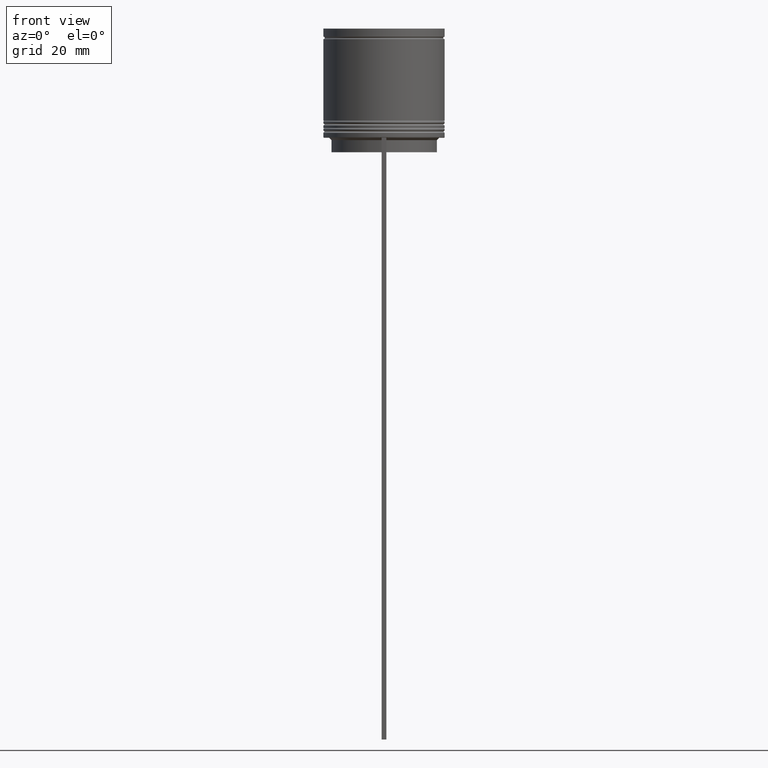
[diagram: clean part render]
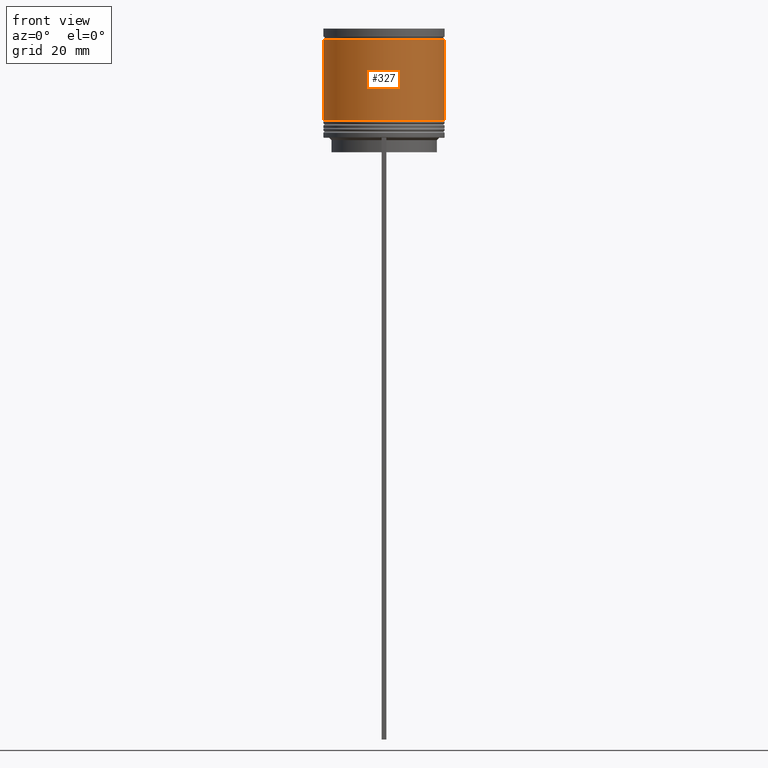
[diagram: same view with one face highlighted and labeled with its STEP entity id]
A machine part, front view. The second image highlights one B-rep face of the part: STEP entity #327.
In plain terms, the highlighted cylindrical surface (partial cylindrical patch) has radius 12.5 mm, axis along (-0, -0, 1).
Its self-contained STEP definition (entity closure, byte-faithful):
#38 = EDGE_CURVE ( 'NONE', #1458, #1888, #1235, .T. ) ;
#74 = DIRECTION ( 'NONE',  ( 1.000000000000000000, 0.000000000000000000, 0.000000000000000000 ) ) ;
#200 = ORIENTED_EDGE ( 'NONE', *, *, #1495, .F. ) ;
#283 = VECTOR ( 'NONE', #1565, 1000.000000000000000 ) ;
#327 = ADVANCED_FACE ( 'NONE', ( #378 ), #1955, .T. ) ;
#345 = AXIS2_PLACEMENT_3D ( 'NONE', #1831, #1221, #706 ) ;
#360 = CARTESIAN_POINT ( 'NONE',  ( 12.49999999999999645, 0.000000000000000000, -2.199999999999994404 ) ) ;
#378 = FACE_OUTER_BOUND ( 'NONE', #1289, .T. ) ;
#424 = CARTESIAN_POINT ( 'NONE',  ( -12.49999999999999645, 1.530808498934191324E-15, -2.199999999999994404 ) ) ;
#438 = CIRCLE ( 'NONE', #1141, 12.50000000000000178 ) ;
#531 = CARTESIAN_POINT ( 'NONE',  ( 12.50000000000000178, 0.000000000000000000, -19.00000000000000000 ) ) ;
#619 = CARTESIAN_POINT ( 'NONE',  ( -12.50000000000000000, 1.530808498934191521E-15, 0.000000000000000000 ) ) ;
#646 = CARTESIAN_POINT ( 'NONE',  ( -12.50000000000000355, 1.530808498934191916E-15, -19.00000000000000000 ) ) ;
#679 = DIRECTION ( 'NONE',  ( -0.000000000000000000, -0.000000000000000000, 1.000000000000000000 ) ) ;
#706 = DIRECTION ( 'NONE',  ( 1.000000000000000000, 0.000000000000000000, 0.000000000000000000 ) ) ;
#733 = AXIS2_PLACEMENT_3D ( 'NONE', #1331, #679, #1151 ) ;
#753 = LINE ( 'NONE', #619, #283 ) ;
#772 = VERTEX_POINT ( 'NONE', #531 ) ;
#788 = EDGE_CURVE ( 'NONE', #1231, #772, #438, .T. ) ;
#1067 = CARTESIAN_POINT ( 'NONE',  ( 12.50000000000000000, 0.000000000000000000, 0.000000000000000000 ) ) ;
#1089 = ORIENTED_EDGE ( 'NONE', *, *, #38, .F. ) ;
#1141 = AXIS2_PLACEMENT_3D ( 'NONE', #1338, #1502, #74 ) ;
#1151 = DIRECTION ( 'NONE',  ( 1.000000000000000000, 0.000000000000000000, 0.000000000000000000 ) ) ;
#1221 = DIRECTION ( 'NONE',  ( -0.000000000000000000, -0.000000000000000000, 1.000000000000000000 ) ) ;
#1229 = LINE ( 'NONE', #1067, #1747 ) ;
#1231 = VERTEX_POINT ( 'NONE', #646 ) ;
#1235 = CIRCLE ( 'NONE', #345, 12.49999999999999645 ) ;
#1289 = EDGE_LOOP ( 'NONE', ( #200, #1962, #1508, #1089 ) ) ;
#1331 = CARTESIAN_POINT ( 'NONE',  ( 0.000000000000000000, 0.000000000000000000, 0.000000000000000000 ) ) ;
#1338 = CARTESIAN_POINT ( 'NONE',  ( 0.000000000000000000, 0.000000000000000000, -19.00000000000000000 ) ) ;
#1458 = VERTEX_POINT ( 'NONE', #424 ) ;
#1470 = EDGE_CURVE ( 'NONE', #772, #1888, #1229, .T. ) ;
#1495 = EDGE_CURVE ( 'NONE', #1231, #1458, #753, .T. ) ;
#1502 = DIRECTION ( 'NONE',  ( -0.000000000000000000, -0.000000000000000000, 1.000000000000000000 ) ) ;
#1508 = ORIENTED_EDGE ( 'NONE', *, *, #1470, .T. ) ;
#1565 = DIRECTION ( 'NONE',  ( -0.000000000000000000, -0.000000000000000000, 1.000000000000000000 ) ) ;
#1747 = VECTOR ( 'NONE', #2030, 1000.000000000000000 ) ;
#1831 = CARTESIAN_POINT ( 'NONE',  ( 0.000000000000000000, 0.000000000000000000, -2.199999999999994404 ) ) ;
#1888 = VERTEX_POINT ( 'NONE', #360 ) ;
#1955 = CYLINDRICAL_SURFACE ( 'NONE', #733, 12.50000000000000000 ) ;
#1962 = ORIENTED_EDGE ( 'NONE', *, *, #788, .T. ) ;
#2030 = DIRECTION ( 'NONE',  ( -0.000000000000000000, -0.000000000000000000, 1.000000000000000000 ) ) ;